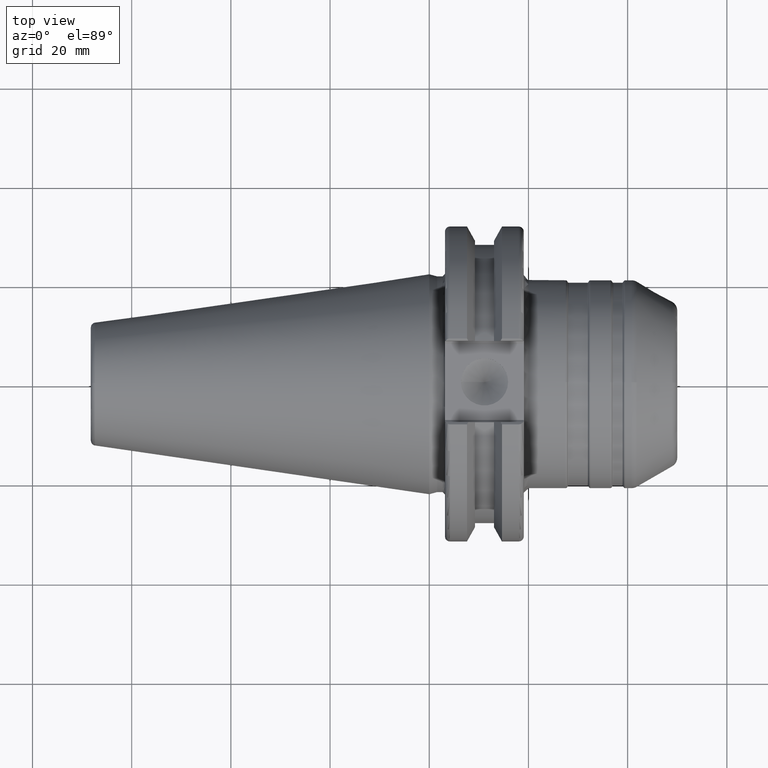
[diagram: clean part render]
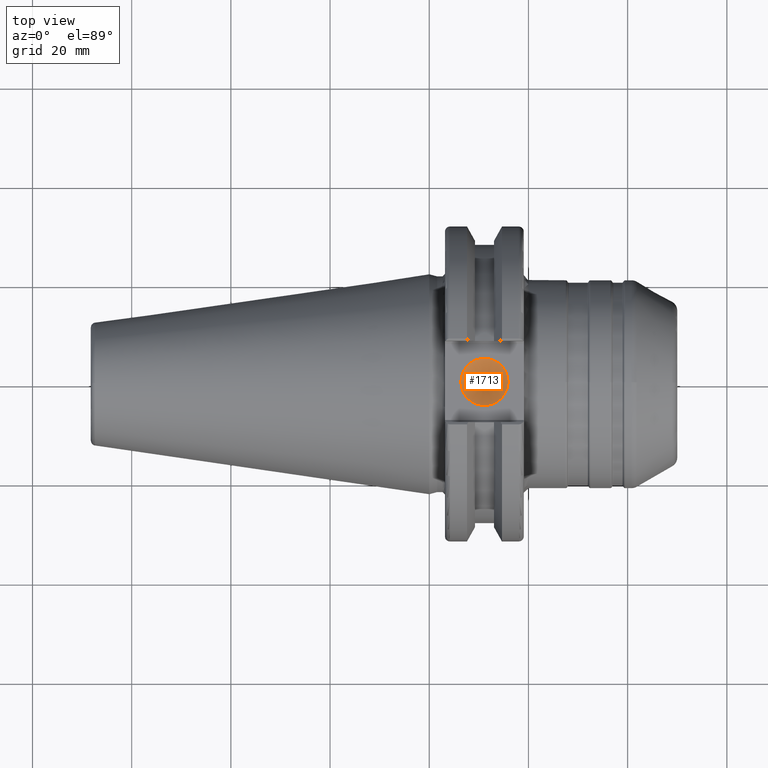
[diagram: same view with one face highlighted and labeled with its STEP entity id]
A machine part, top view. The second image highlights one B-rep face of the part: STEP entity #1713.
In plain terms, the highlighted conical surface has half-angle 59 deg.
Its self-contained STEP definition (entity closure, byte-faithful):
#131=CONICAL_SURFACE('',#1949,2.38125,1.02974425867665);
#225=LINE('',#3242,#317);
#317=VECTOR('',#2463,2.38125);
#431=FACE_OUTER_BOUND('',#541,.T.);
#541=EDGE_LOOP('',(#1543,#1544,#1545));
#657=CIRCLE('',#1950,4.7625);
#835=VERTEX_POINT('',#3239);
#836=VERTEX_POINT('',#3241);
#1082=EDGE_CURVE('',#835,#835,#657,.T.);
#1083=EDGE_CURVE('',#835,#836,#225,.T.);
#1543=ORIENTED_EDGE('',*,*,#1082,.T.);
#1544=ORIENTED_EDGE('',*,*,#1083,.T.);
#1545=ORIENTED_EDGE('',*,*,#1083,.F.);
#1713=ADVANCED_FACE('',(#431),#131,.F.);
#1949=AXIS2_PLACEMENT_3D('',#3238,#2459,#2460);
#1950=AXIS2_PLACEMENT_3D('',#3240,#2461,#2462);
#2459=DIRECTION('center_axis',(0.,0.,1.));
#2460=DIRECTION('ref_axis',(1.,0.,0.));
#2461=DIRECTION('center_axis',(0.,0.,1.));
#2462=DIRECTION('ref_axis',(1.,0.,0.));
#2463=DIRECTION('',(0.857167300702112,1.04972719113862E-16,-0.515038074910054));
#3238=CARTESIAN_POINT('Origin',(11.1341,0.,23.1692006509406));
#3239=CARTESIAN_POINT('',(6.3716,-5.83238038093927E-16,24.6));
#3240=CARTESIAN_POINT('Origin',(11.1341,0.,24.6));
#3241=CARTESIAN_POINT('',(11.1341,0.,21.7384013018812));
#3242=CARTESIAN_POINT('',(8.75285,-2.91619019046964E-16,23.1692006509406));